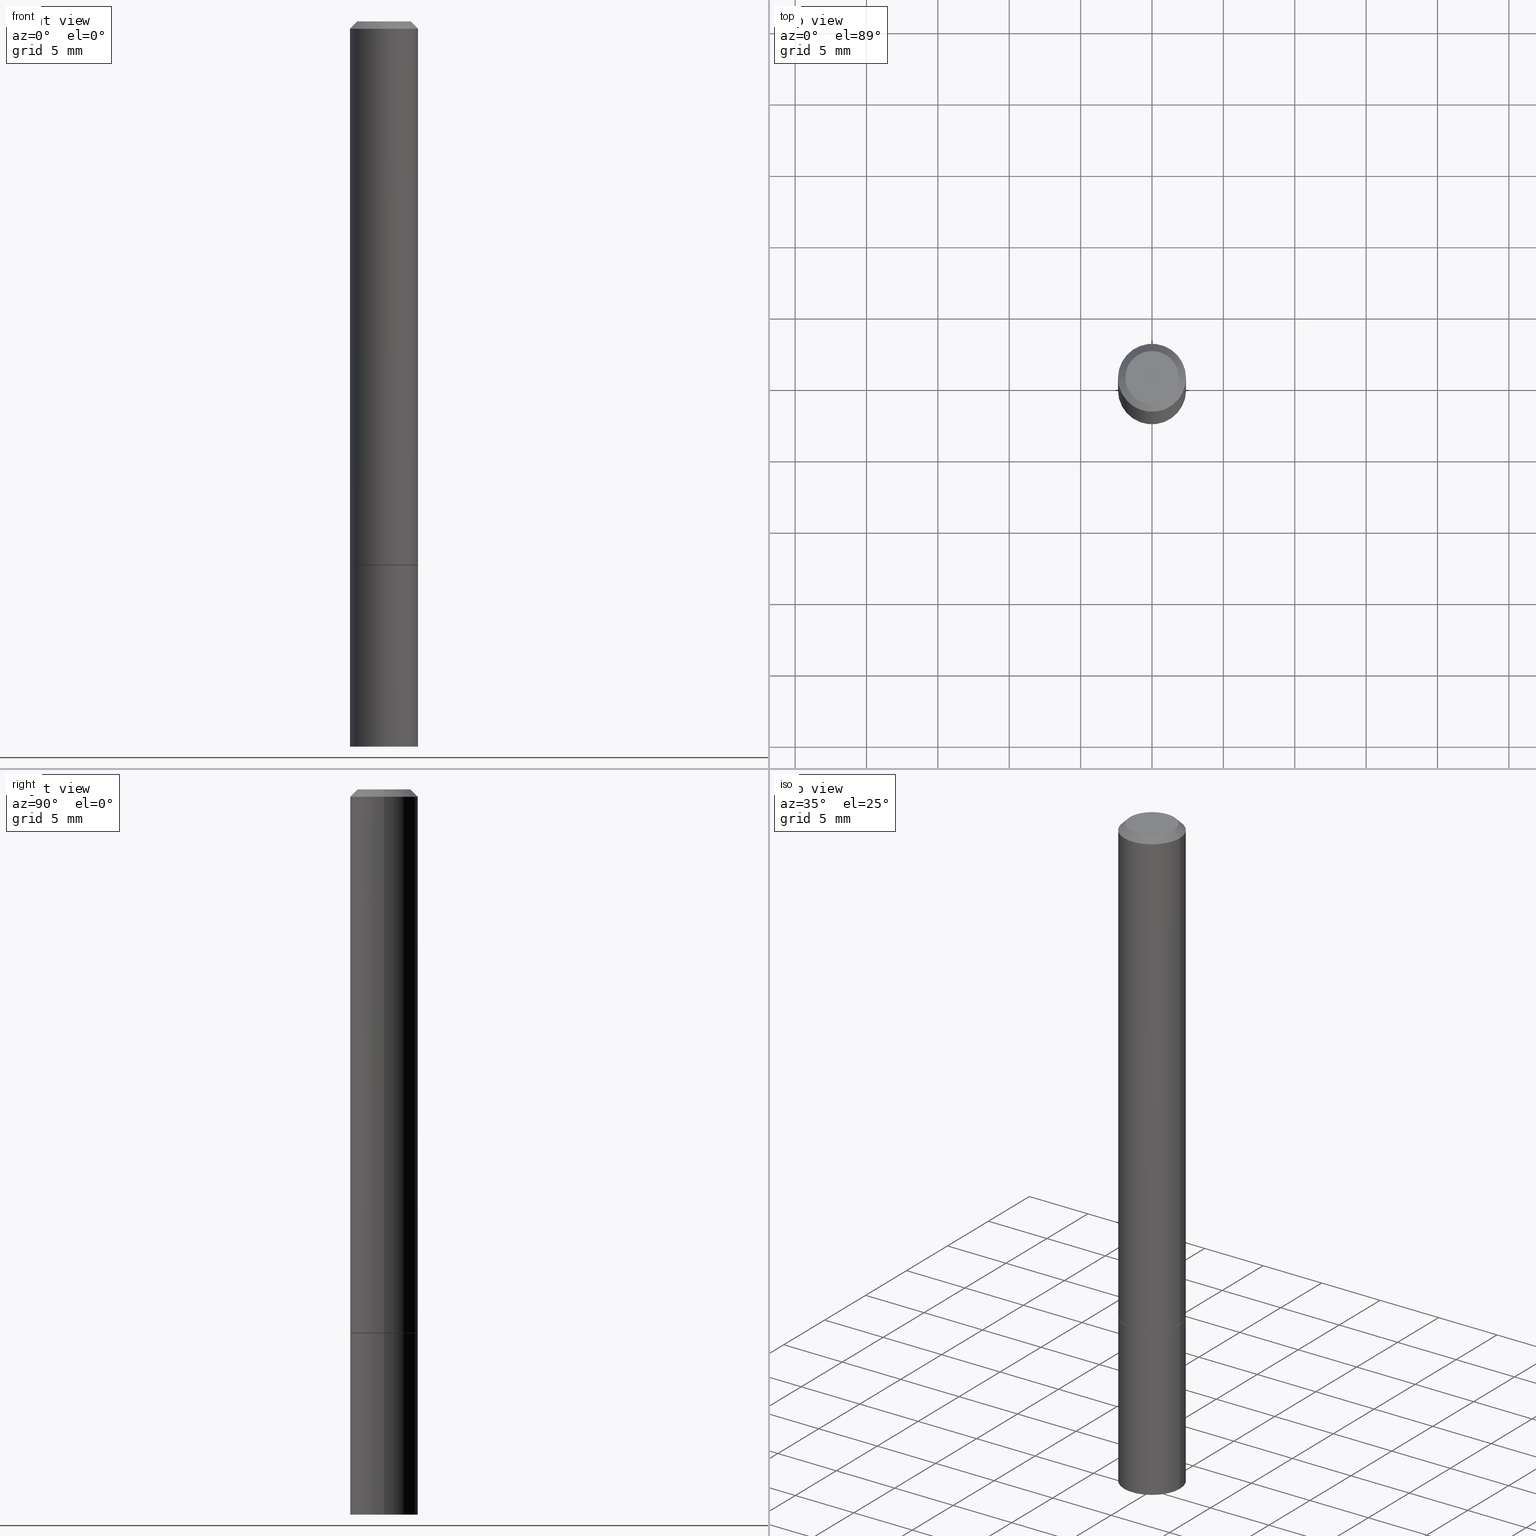
[diagram: canonical four-view strip — front | top / right | iso, engineering-drawing reading convention]
A machine part, canonical four-view strip (front | top / right | iso — engineering-drawing reading convention). The complete STEP part file that produces these views, byte-faithful:
ISO-10303-21;
HEADER;
FILE_DESCRIPTION (( 'STEP AP203' ),
    '1' );
FILE_NAME ('37182.STEP',
    '2024-02-27T20:48:31',
    ( '' ),
    ( '' ),
    'SwSTEP 2.0',
    'SolidWorks 2023',
    '' );
FILE_SCHEMA (( 'CONFIG_CONTROL_DESIGN' ));
ENDSEC;

DATA;
#1 = AXIS2_PLACEMENT_3D ( 'NONE', #320, #59, #167 ) ;
#2 = CC_DESIGN_PERSON_AND_ORGANIZATION_ASSIGNMENT ( #63, #122, ( #170 ) ) ;
#3 = DIRECTION ( 'NONE',  ( 1.000000000000000000, -6.982962677686261977E-15, 0.000000000000000000 ) ) ;
#4 = LINE ( 'NONE', #156, #85 ) ;
#5 = LOCAL_TIME ( 15, 48, 31.00000000000000000, #106 ) ;
#6 = AXIS2_PLACEMENT_3D ( 'NONE', #186, #86, #3 ) ;
#7 = EDGE_CURVE ( 'NONE', #115, #194, #32, .T. ) ;
#8 = VERTEX_POINT ( 'NONE', #355 ) ;
#9 = PRODUCT_DEFINITION_SHAPE ( 'NONE', 'NONE',  #250 ) ;
#10 = DATE_AND_TIME ( #143, #153 ) ;
#11 = ORIENTED_EDGE ( 'NONE', *, *, #162, .F. ) ;
#12 = DIRECTION ( 'NONE',  ( 1.000000000000000000, -6.982962677686266711E-15, 4.876176775795935793E-29 ) ) ;
#13 = ORIENTED_EDGE ( 'NONE', *, *, #291, .T. ) ;
#14 = APPROVAL_ROLE ( '' ) ;
#15 = EDGE_LOOP ( 'NONE', ( #273, #196, #203, #252 ) ) ;
#16 = APPROVAL_DATE_TIME ( #269, #271 ) ;
#17 = DESIGN_CONTEXT ( 'detailed design', #248, 'design' ) ;
#18 = ADVANCED_FACE ( 'NONE', ( #98 ), #178, .F. ) ;
#19 = PERSON_AND_ORGANIZATION_ROLE ( 'classification_officer' ) ;
#20 = CYLINDRICAL_SURFACE ( 'NONE', #227, 0.09374999999999991673 ) ;
#21 = DIRECTION ( 'NONE',  ( 2.438088387897960049E-29, -3.491481338843145188E-15, -1.000000000000000000 ) ) ;
#22 = ORIENTED_EDGE ( 'NONE', *, *, #291, .F. ) ;
#23 = AXIS2_PLACEMENT_3D ( 'NONE', #123, #201, #301 ) ;
#24 = CALENDAR_DATE ( 2024, 27, 2 ) ;
#25 = CIRCLE ( 'NONE', #326, 0.09375000000000001388 ) ;
#26 = PLANE ( 'NONE',  #152 ) ;
#27 = ORIENTED_EDGE ( 'NONE', *, *, #64, .F. ) ;
#28 = LOCAL_TIME ( 15, 48, 31.00000000000000000, #330 ) ;
#29 = MANIFOLD_SOLID_BREP ( 'Body-Move/Copy2[2]', #154 ) ;
#30 = DIRECTION ( 'NONE',  ( 1.000000000000000000, -6.982962677686266711E-15, 4.876176775795935793E-29 ) ) ;
#31 = DIRECTION ( 'NONE',  ( 1.000000000000000000, -6.982962677686265922E-15, 4.876176775795935793E-29 ) ) ;
#32 = CIRCLE ( 'NONE', #84, 0.09375000000000001388 ) ;
#33 = PLANE ( 'NONE',  #311 ) ;
#34 = ORIENTED_EDGE ( 'NONE', *, *, #359, .T. ) ;
#35 = FACE_OUTER_BOUND ( 'NONE', #217, .T. ) ;
#36 = EDGE_LOOP ( 'NONE', ( #136, #37, #266, #11 ) ) ;
#37 = ORIENTED_EDGE ( 'NONE', *, *, #144, .T. ) ;
#38 = CONICAL_SURFACE ( 'NONE', #258, 0.09374999999999981959, 0.7853981633974472798 ) ;
#39 = ADVANCED_FACE ( 'NONE', ( #42 ), #197, .T. ) ;
#40 = CALENDAR_DATE ( 2024, 27, 2 ) ;
#41 = DIRECTION ( 'NONE',  ( -1.000000000000000000, 6.982962677686265922E-15, -4.876176775795935793E-29 ) ) ;
#42 = FACE_OUTER_BOUND ( 'NONE', #36, .T. ) ;
#43 = CARTESIAN_POINT ( 'NONE',  ( 3.665757740471518171E-29, -5.233730526925873592E-15, -1.498999999999999444 ) ) ;
#44 = ORIENTED_EDGE ( 'NONE', *, *, #215, .F. ) ;
#45 = CARTESIAN_POINT ( 'NONE',  ( -0.09375000000000001388, -5.443958528200409958E-15, -2.000000000000000000 ) ) ;
#46 = EDGE_LOOP ( 'NONE', ( #340, #90, #310, #237 ) ) ;
#47 = CONICAL_SURFACE ( 'NONE', #315, 0.09274999999999999911, 0.7853981633972775267 ) ;
#48 = APPROVAL_PERSON_ORGANIZATION ( #229, #271, #212 ) ;
#49 = AXIS2_PLACEMENT_3D ( 'NONE', #263, #191, #114 ) ;
#50 = CARTESIAN_POINT ( 'NONE',  ( 0.09274999999999999911, -5.884891796620118089E-15, -1.499999999999999778 ) ) ;
#51 = FACE_OUTER_BOUND ( 'NONE', #338, .T. ) ;
#52 = CARTESIAN_POINT ( 'NONE',  ( 0.000000000000000000, 0.000000000000000000, 0.000000000000000000 ) ) ;
#53 = DIRECTION ( 'NONE',  ( 2.445468806185136597E-29, -3.491481338843145583E-15, -1.000000000000000000 ) ) ;
#54 = EDGE_CURVE ( 'NONE', #83, #137, #147, .T. ) ;
#55 = CARTESIAN_POINT ( 'NONE',  ( 0.09374999999999991673, -6.546527510330869125E-16, 4.571415727308685602E-30 ) ) ;
#56 = PERSON ( 'UNSPECIFIED', 'UNSPECIFIED', 'UNSPECIFIED', ('UNSPECIFIED'), ('UNSPECIFIED'), ('UNSPECIFIED') ) ;
#57 = CIRCLE ( 'NONE', #267, 0.07374999999999982958 ) ;
#58 = CARTESIAN_POINT ( 'NONE',  ( -0.09375000000000001388, -1.985646262076272154E-15, -1.498999999999999444 ) ) ;
#59 = DIRECTION ( 'NONE',  ( -2.445468806185136597E-29, 3.491481338843145583E-15, 1.000000000000000000 ) ) ;
#60 = AXIS2_PLACEMENT_3D ( 'NONE', #348, #234, #97 ) ;
#61 = CIRCLE ( 'NONE', #222, 0.09375000000000001388 ) ;
#62 = DIRECTION ( 'NONE',  ( 1.000000000000000000, -6.982962677686266711E-15, 0.000000000000000000 ) ) ;
#63 = PERSON_AND_ORGANIZATION ( #56, #165 ) ;
#64 = EDGE_CURVE ( 'NONE', #115, #249, #70, .T. ) ;
#65 = COORDINATED_UNIVERSAL_TIME_OFFSET ( 5, 0, .BEHIND. ) ;
#66 = DIRECTION ( 'NONE',  ( 2.438088387897960049E-29, -3.491481338843145188E-15, -1.000000000000000000 ) ) ;
#67 = EDGE_LOOP ( 'NONE', ( #34, #329 ) ) ;
#68 = CARTESIAN_POINT ( 'NONE',  ( 5.149934974793609077E-16, 0.07374999999999982958, -2.574967487396813906E-16 ) ) ;
#69 = ADVANCED_FACE ( 'NONE', ( #108 ), #47, .T. ) ;
#70 = LINE ( 'NONE', #358, #206 ) ;
#71 = DIRECTION ( 'NONE',  ( -2.445468806185136877E-29, 3.491481338843145188E-15, 1.000000000000000000 ) ) ;
#72 = CALENDAR_DATE ( 2024, 27, 2 ) ;
#73 = CC_DESIGN_PERSON_AND_ORGANIZATION_ASSIGNMENT ( #121, #239, ( #250 ) ) ;
#74 = DIRECTION ( 'NONE',  ( 2.438088387897960049E-29, -3.491481338843145188E-15, -1.000000000000000000 ) ) ;
#75 = DIRECTION ( 'NONE',  ( 1.000000000000000000, -6.982962677686261189E-15, 0.000000000000000000 ) ) ;
#76 = CIRCLE ( 'NONE', #188, 0.09375000000000001388 ) ;
#77 = VECTOR ( 'NONE', #78, 39.37007874015748143 ) ;
#78 = DIRECTION ( 'NONE',  ( -2.445468806185136877E-29, 3.491481338843145188E-15, 1.000000000000000000 ) ) ;
#79 = PERSON_AND_ORGANIZATION ( #56, #165 ) ;
#80 = ORIENTED_EDGE ( 'NONE', *, *, #144, .F. ) ;
#81 = DIRECTION ( 'NONE',  ( -1.000000000000000000, 6.982962677686268288E-15, 0.000000000000000000 ) ) ;
#82 = EDGE_CURVE ( 'NONE', #194, #115, #353, .T. ) ;
#83 = VERTEX_POINT ( 'NONE', #277 ) ;
#84 = AXIS2_PLACEMENT_3D ( 'NONE', #230, #365, #307 ) ;
#85 = VECTOR ( 'NONE', #218, 39.37007874015748143 ) ;
#86 = DIRECTION ( 'NONE',  ( -2.445468806185136597E-29, 3.491481338843145583E-15, 1.000000000000000000 ) ) ;
#87 = CARTESIAN_POINT ( 'NONE',  ( 0.09375000000000001388, -7.637615428719378669E-15, -2.000000000000000000 ) ) ;
#88 = FACE_OUTER_BOUND ( 'NONE', #293, .T. ) ;
#89 =( NAMED_UNIT ( * ) SI_UNIT ( $, .STERADIAN. ) SOLID_ANGLE_UNIT ( ) );
#90 = ORIENTED_EDGE ( 'NONE', *, *, #174, .T. ) ;
#91 = ORIENTED_EDGE ( 'NONE', *, *, #245, .F. ) ;
#92 = UNCERTAINTY_MEASURE_WITH_UNIT (LENGTH_MEASURE( 1.000000000000000082E-05 ), #168, 'distance_accuracy_value', 'NONE');
#93 = CC_DESIGN_APPROVAL ( #271, ( #250 ) ) ;
#94 = DIRECTION ( 'NONE',  ( -2.445468806185136597E-29, 3.491481338843145583E-15, 1.000000000000000000 ) ) ;
#95 = ADVANCED_FACE ( 'NONE', ( #339 ), #334, .F. ) ;
#96 = CARTESIAN_POINT ( 'NONE',  ( -0.07374999999999982958, 5.499083108677921624E-16, -3.723527850031185562E-30 ) ) ;
#97 = DIRECTION ( 'NONE',  ( 1.000000000000000000, -6.982962677686261189E-15, 0.000000000000000000 ) ) ;
#98 = FACE_OUTER_BOUND ( 'NONE', #132, .T. ) ;
#99 = CARTESIAN_POINT ( 'NONE',  ( 3.668203209277704335E-29, -5.237222008264717388E-15, -1.499999999999999778 ) ) ;
#100 = SECURITY_CLASSIFICATION ( '', '', #357 ) ;
#101 = CARTESIAN_POINT ( 'NONE',  ( 4.890937612370281041E-31, -6.982962677686302702E-17, -0.02000000000000003511 ) ) ;
#102 = EDGE_LOOP ( 'NONE', ( #233, #80 ) ) ;
#103 = AXIS2_PLACEMENT_3D ( 'NONE', #107, #150, #309 ) ;
#104 = PERSON_AND_ORGANIZATION_ROLE ( 'design_owner' ) ;
#105 = PERSON_AND_ORGANIZATION ( #56, #165 ) ;
#106 = COORDINATED_UNIVERSAL_TIME_OFFSET ( 5, 0, .BEHIND. ) ;
#107 = CARTESIAN_POINT ( 'NONE',  ( 4.890937612370273194E-29, -6.982962677686291165E-15, -2.000000000000000000 ) ) ;
#108 = FACE_OUTER_BOUND ( 'NONE', #15, .T. ) ;
#109 = CARTESIAN_POINT ( 'NONE',  ( -0.09274999999999999911, -4.578193620847224472E-15, -1.499999999999999778 ) ) ;
#110 = EDGE_CURVE ( 'NONE', #360, #141, #243, .T. ) ;
#111 = CARTESIAN_POINT ( 'NONE',  ( 0.09375000000000001388, -5.891874759297804892E-15, -1.499999999999999778 ) ) ;
#112 = FACE_OUTER_BOUND ( 'NONE', #46, .T. ) ;
#113 = VECTOR ( 'NONE', #341, 39.37007874015748143 ) ;
#114 = DIRECTION ( 'NONE',  ( -1.000000000000000000, 6.982962677686268288E-15, 0.000000000000000000 ) ) ;
#115 = VERTEX_POINT ( 'NONE', #45 ) ;
#116 = ORIENTED_EDGE ( 'NONE', *, *, #255, .T. ) ;
#117 = CONICAL_SURFACE ( 'NONE', #49, 0.09374999999999981959, 0.7853981633974472798 ) ;
#118 = DIRECTION ( 'NONE',  ( 1.000000000000000000, -6.982962677686261977E-15, 0.000000000000000000 ) ) ;
#119 = CARTESIAN_POINT ( 'NONE',  ( 0.000000000000000000, 0.000000000000000000, 0.000000000000000000 ) ) ;
#120 = CC_DESIGN_DATE_AND_TIME_ASSIGNMENT ( #302, #127, ( #250 ) ) ;
#121 = PERSON_AND_ORGANIZATION ( #56, #165 ) ;
#122 = PERSON_AND_ORGANIZATION_ROLE ( 'design_supplier' ) ;
#123 = CARTESIAN_POINT ( 'NONE',  ( 3.668203209277704335E-29, -5.237222008264717388E-15, -1.499999999999999778 ) ) ;
#124 = COORDINATED_UNIVERSAL_TIME_OFFSET ( 5, 0, .BEHIND. ) ;
#125 = DIRECTION ( 'NONE',  ( -1.000000000000000000, 6.982962677686265922E-15, -4.876176775795935793E-29 ) ) ;
#126 = ADVANCED_FACE ( 'NONE', ( #279 ), #26, .T. ) ;
#127 = DATE_TIME_ROLE ( 'creation_date' ) ;
#128 = CARTESIAN_POINT ( 'NONE',  ( 6.546527510331364135E-16, 0.09374999999999301947, -2.000000000000000444 ) ) ;
#129 = ORIENTED_EDGE ( 'NONE', *, *, #149, .F. ) ;
#130 =( GEOMETRIC_REPRESENTATION_CONTEXT ( 3 ) GLOBAL_UNCERTAINTY_ASSIGNED_CONTEXT ( ( #92 ) ) GLOBAL_UNIT_ASSIGNED_CONTEXT ( ( #168, #349, #89 ) ) REPRESENTATION_CONTEXT ( 'NONE', 'WORKASPACE' ) );
#131 = CC_DESIGN_PERSON_AND_ORGANIZATION_ASSIGNMENT ( #362, #104, ( #303 ) ) ;
#132 = EDGE_LOOP ( 'NONE', ( #305, #13 ) ) ;
#133 = FACE_OUTER_BOUND ( 'NONE', #324, .T. ) ;
#134 = LOCAL_TIME ( 15, 48, 31.00000000000000000, #65 ) ;
#135 = CIRCLE ( 'NONE', #60, 0.09375000000000001388 ) ;
#136 = ORIENTED_EDGE ( 'NONE', *, *, #314, .F. ) ;
#137 = VERTEX_POINT ( 'NONE', #313 ) ;
#138 = VECTOR ( 'NONE', #182, 39.37007874015748143 ) ;
#139 = LENGTH_MEASURE_WITH_UNIT ( LENGTH_MEASURE( 0.02539999999999999897 ), #202 );
#140 = ORIENTED_EDGE ( 'NONE', *, *, #82, .F. ) ;
#141 = VERTEX_POINT ( 'NONE', #265 ) ;
#142 = APPLICATION_CONTEXT ( 'configuration controlled 3d designs of mechanical parts and assemblies' ) ;
#143 = CALENDAR_DATE ( 2024, 27, 2 ) ;
#144 = EDGE_CURVE ( 'NONE', #8, #83, #228, .T. ) ;
#145 = VERTEX_POINT ( 'NONE', #251 ) ;
#146 = LOCAL_TIME ( 15, 48, 31.00000000000000000, #278 ) ;
#147 = LINE ( 'NONE', #50, #363 ) ;
#148 = ORIENTED_EDGE ( 'NONE', *, *, #171, .F. ) ;
#149 = EDGE_CURVE ( 'NONE', #137, #179, #257, .T. ) ;
#150 = DIRECTION ( 'NONE',  ( -2.445468806185136597E-29, 3.491481338843145583E-15, 1.000000000000000000 ) ) ;
#151 = ORIENTED_EDGE ( 'NONE', *, *, #316, .T. ) ;
#152 = AXIS2_PLACEMENT_3D ( 'NONE', #128, #74, #183 ) ;
#153 = LOCAL_TIME ( 15, 48, 31.00000000000000000, #124 ) ;
#154 = CLOSED_SHELL ( 'NONE', ( #69, #321, #180, #166, #285, #39, #189, #95 ) ) ;
#155 = DIRECTION ( 'NONE',  ( 1.000000000000000000, 0.000000000000000000, 0.000000000000000000 ) ) ;
#156 = CARTESIAN_POINT ( 'NONE',  ( 0.09374999999999981959, -7.130013140679428044E-16, -0.02000000000000003511 ) ) ;
#157 = CARTESIAN_POINT ( 'NONE',  ( -0.09375000000000001388, -5.443958528200409958E-15, -1.499999999999999778 ) ) ;
#158 = DIRECTION ( 'NONE',  ( 1.000000000000000000, -6.982962677686266711E-15, 4.876176775795935793E-29 ) ) ;
#159 = CYLINDRICAL_SURFACE ( 'NONE', #172, 0.09375000000000001388 ) ;
#160 = PRODUCT_RELATED_PRODUCT_CATEGORY ( 'detail', '', ( #303 ) ) ;
#161 = CARTESIAN_POINT ( 'NONE',  ( 3.668203209277704335E-29, -5.237222008264717388E-15, -1.499999999999999778 ) ) ;
#162 = EDGE_CURVE ( 'NONE', #209, #137, #76, .T. ) ;
#163 = CARTESIAN_POINT ( 'NONE',  ( 0.000000000000000000, 0.000000000000000000, 0.000000000000000000 ) ) ;
#164 = VECTOR ( 'NONE', #190, 39.37007874015748143 ) ;
#165 = ORGANIZATION ( 'UNSPECIFIED', 'UNSPECIFIED', '' ) ;
#166 = ADVANCED_FACE ( 'NONE', ( #133 ), #38, .T. ) ;
#167 = DIRECTION ( 'NONE',  ( 1.000000000000000000, -6.982962677686265922E-15, 4.876176775795935793E-29 ) ) ;
#168 =( CONVERSION_BASED_UNIT ( 'INCH', #139 ) LENGTH_UNIT ( ) NAMED_UNIT ( #262 ) );
#169 = APPROVAL ( #331, 'UNSPECIFIED' ) ;
#170 = PRODUCT_DEFINITION_FORMATION_WITH_SPECIFIED_SOURCE ( 'ANY', '', #303, .NOT_KNOWN. ) ;
#171 = EDGE_CURVE ( 'NONE', #236, #249, #61, .T. ) ;
#172 = AXIS2_PLACEMENT_3D ( 'NONE', #280, #366, #284 ) ;
#173 = ORIENTED_EDGE ( 'NONE', *, *, #82, .T. ) ;
#174 = EDGE_CURVE ( 'NONE', #145, #179, #4, .T. ) ;
#175 = ORIENTED_EDGE ( 'NONE', *, *, #174, .F. ) ;
#176 = DIRECTION ( 'NONE',  ( 1.000000000000000000, -6.982962677686266711E-15, 4.876176775795935793E-29 ) ) ;
#177 = CALENDAR_DATE ( 2024, 27, 2 ) ;
#178 = PLANE ( 'NONE',  #244 ) ;
#179 = VERTEX_POINT ( 'NONE', #254 ) ;
#180 = ADVANCED_FACE ( 'NONE', ( #112 ), #117, .T. ) ;
#181 = CARTESIAN_POINT ( 'NONE',  ( 0.09375000000000001388, -6.546527510330875041E-16, 4.571415727308690506E-30 ) ) ;
#182 = DIRECTION ( 'NONE',  ( -0.7071067811865467956, 2.468850131082249172E-15, -0.7071067811865482389 ) ) ;
#183 = DIRECTION ( 'NONE',  ( -1.000000000000000000, 6.982962677686265922E-15, -4.876176775795935793E-29 ) ) ;
#184 = CIRCLE ( 'NONE', #297, 0.09374999999999981959 ) ;
#185 = DIRECTION ( 'NONE',  ( -2.445468806185136597E-29, 3.491481338843145583E-15, 1.000000000000000000 ) ) ;
#186 = CARTESIAN_POINT ( 'NONE',  ( 3.668203209277704335E-29, -5.237222008264717388E-15, -1.499999999999999778 ) ) ;
#187 = APPROVAL_PERSON_ORGANIZATION ( #200, #169, #247 ) ;
#188 = AXIS2_PLACEMENT_3D ( 'NONE', #289, #253, #318 ) ;
#189 = ADVANCED_FACE ( 'NONE', ( #264 ), #33, .F. ) ;
#190 = DIRECTION ( 'NONE',  ( -2.445468806185136877E-29, 3.491481338843145188E-15, 1.000000000000000000 ) ) ;
#191 = DIRECTION ( 'NONE',  ( 2.445468806185136597E-29, -3.491481338843145583E-15, -1.000000000000000000 ) ) ;
#192 = CYLINDRICAL_SURFACE ( 'NONE', #1, 0.09375000000000001388 ) ;
#193 = CARTESIAN_POINT ( 'NONE',  ( -0.09374999999999991673, 6.661338147750933326E-16, -4.611501647113969791E-30 ) ) ;
#194 = VERTEX_POINT ( 'NONE', #87 ) ;
#195 = CARTESIAN_POINT ( 'NONE',  ( 0.000000000000000000, 0.000000000000000000, 0.000000000000000000 ) ) ;
#196 = ORIENTED_EDGE ( 'NONE', *, *, #314, .T. ) ;
#197 = CONICAL_SURFACE ( 'NONE', #23, 0.09274999999999999911, 0.7853981633972775267 ) ;
#198 = CIRCLE ( 'NONE', #345, 0.09374999999999981959 ) ;
#199 = DIRECTION ( 'NONE',  ( -2.445468806185136597E-29, 3.491481338843145583E-15, 1.000000000000000000 ) ) ;
#200 = PERSON_AND_ORGANIZATION ( #56, #165 ) ;
#201 = DIRECTION ( 'NONE',  ( -2.445468806185136597E-29, 3.491481338843145583E-15, 1.000000000000000000 ) ) ;
#202 =( LENGTH_UNIT ( ) NAMED_UNIT ( * ) SI_UNIT ( $, .METRE. ) );
#203 = ORIENTED_EDGE ( 'NONE', *, *, #255, .F. ) ;
#204 = PERSON_AND_ORGANIZATION_ROLE ( 'creator' ) ;
#205 = AXIS2_PLACEMENT_3D ( 'NONE', #163, #290, #30 ) ;
#206 = VECTOR ( 'NONE', #364, 39.37007874015748143 ) ;
#207 = CC_DESIGN_DATE_AND_TIME_ASSIGNMENT ( #10, #350, ( #100 ) ) ;
#208 = APPLICATION_PROTOCOL_DEFINITION ( 'international standard', 'config_control_design', 1994, #142 ) ;
#209 = VERTEX_POINT ( 'NONE', #58 ) ;
#210 = CARTESIAN_POINT ( 'NONE',  ( -0.09374999999999981959, 5.848231242562233185E-16, -0.02000000000000003511 ) ) ;
#211 = ORIENTED_EDGE ( 'NONE', *, *, #337, .F. ) ;
#212 = APPROVAL_ROLE ( '' ) ;
#213 = DIRECTION ( 'NONE',  ( -2.445468806185136597E-29, 3.491481338843145583E-15, 1.000000000000000000 ) ) ;
#214 = APPROVAL_DATE_TIME ( #272, #169 ) ;
#215 = EDGE_CURVE ( 'NONE', #141, #179, #184, .T. ) ;
#216 = DIRECTION ( 'NONE',  ( -2.445468806185136597E-29, 3.491481338843145583E-15, 1.000000000000000000 ) ) ;
#217 = EDGE_LOOP ( 'NONE', ( #116, #298, #91, #129 ) ) ;
#218 = DIRECTION ( 'NONE',  ( 0.7071067811865467956, -7.319954787623254468E-15, -0.7071067811865482389 ) ) ;
#219 = LINE ( 'NONE', #109, #113 ) ;
#220 = ORIENTED_EDGE ( 'NONE', *, *, #162, .T. ) ;
#221 = ADVANCED_FACE ( 'NONE', ( #306 ), #159, .T. ) ;
#222 = AXIS2_PLACEMENT_3D ( 'NONE', #161, #286, #342 ) ;
#223 = CC_DESIGN_APPROVAL ( #169, ( #170 ) ) ;
#224 = CARTESIAN_POINT ( 'NONE',  ( 3.668203209277704335E-29, -5.237222008264717388E-15, -1.499999999999999778 ) ) ;
#225 = CLOSED_SHELL ( 'NONE', ( #322, #126, #18, #221 ) ) ;
#226 = EDGE_LOOP ( 'NONE', ( #140, #238 ) ) ;
#227 = AXIS2_PLACEMENT_3D ( 'NONE', #195, #300, #12 ) ;
#228 = CIRCLE ( 'NONE', #6, 0.09274999999999999911 ) ;
#229 = PERSON_AND_ORGANIZATION ( #56, #165 ) ;
#230 = CARTESIAN_POINT ( 'NONE',  ( 4.890937612370273194E-29, -6.982962677686291165E-15, -2.000000000000000000 ) ) ;
#231 = CARTESIAN_POINT ( 'NONE',  ( 0.000000000000000000, 0.000000000000000000, 0.000000000000000000 ) ) ;
#232 = DIRECTION ( 'NONE',  ( 0.000000000000000000, 0.000000000000000000, 1.000000000000000000 ) ) ;
#233 = ORIENTED_EDGE ( 'NONE', *, *, #346, .F. ) ;
#234 = DIRECTION ( 'NONE',  ( -2.445468806185136597E-29, 3.491481338843145583E-15, 1.000000000000000000 ) ) ;
#235 = DATE_AND_TIME ( #72, #5 ) ;
#236 = VERTEX_POINT ( 'NONE', #111 ) ;
#237 = ORIENTED_EDGE ( 'NONE', *, *, #110, .F. ) ;
#238 = ORIENTED_EDGE ( 'NONE', *, *, #7, .F. ) ;
#239 = PERSON_AND_ORGANIZATION_ROLE ( 'creator' ) ;
#240 = SHAPE_DEFINITION_REPRESENTATION ( #9, #288 ) ;
#241 = DIRECTION ( 'NONE',  ( 0.7071067811864267805, -2.468850131080992517E-15, 0.7071067811866682540 ) ) ;
#242 = LINE ( 'NONE', #181, #77 ) ;
#243 = LINE ( 'NONE', #210, #138 ) ;
#244 = AXIS2_PLACEMENT_3D ( 'NONE', #332, #66, #41 ) ;
#245 = EDGE_CURVE ( 'NONE', #179, #141, #198, .T. ) ;
#246 = APPROVAL_STATUS ( 'not_yet_approved' ) ;
#247 = APPROVAL_ROLE ( '' ) ;
#248 = APPLICATION_CONTEXT ( 'configuration controlled 3d designs of mechanical parts and assemblies' ) ;
#249 = VERTEX_POINT ( 'NONE', #157 ) ;
#250 = PRODUCT_DEFINITION ( 'UNKNOWN', '', #170, #17 ) ;
#251 = CARTESIAN_POINT ( 'NONE',  ( 0.07374999999999982958, -6.094815207017960212E-16, 3.931526600461596647E-30 ) ) ;
#252 = ORIENTED_EDGE ( 'NONE', *, *, #54, .F. ) ;
#253 = DIRECTION ( 'NONE',  ( -2.445468806185136597E-29, 3.491481338843145583E-15, 1.000000000000000000 ) ) ;
#254 = CARTESIAN_POINT ( 'NONE',  ( 0.09374999999999981959, -7.130013140679428044E-16, -0.02000000000000003511 ) ) ;
#255 = EDGE_CURVE ( 'NONE', #137, #209, #25, .T. ) ;
#256 = APPROVAL ( #268, 'UNSPECIFIED' ) ;
#257 = LINE ( 'NONE', #55, #164 ) ;
#258 = AXIS2_PLACEMENT_3D ( 'NONE', #283, #53, #81 ) ;
#259 = VECTOR ( 'NONE', #71, 39.37007874015748143 ) ;
#260 = ORIENTED_EDGE ( 'NONE', *, *, #215, .T. ) ;
#261 = ORIENTED_EDGE ( 'NONE', *, *, #149, .T. ) ;
#262 = DIMENSIONAL_EXPONENTS ( 1.000000000000000000, 0.000000000000000000, 0.000000000000000000, 0.000000000000000000, 0.000000000000000000, 0.000000000000000000, 0.000000000000000000 ) ;
#263 = CARTESIAN_POINT ( 'NONE',  ( 4.890937612370281041E-31, -6.982962677686302702E-17, -0.02000000000000003511 ) ) ;
#264 = FACE_OUTER_BOUND ( 'NONE', #102, .T. ) ;
#265 = CARTESIAN_POINT ( 'NONE',  ( -0.09374999999999981959, 5.848231242562233185E-16, -0.02000000000000003511 ) ) ;
#266 = ORIENTED_EDGE ( 'NONE', *, *, #54, .T. ) ;
#267 = AXIS2_PLACEMENT_3D ( 'NONE', #52, #213, #158 ) ;
#268 = APPROVAL_STATUS ( 'not_yet_approved' ) ;
#269 = DATE_AND_TIME ( #177, #28 ) ;
#270 = ORIENTED_EDGE ( 'NONE', *, *, #359, .F. ) ;
#271 = APPROVAL ( #246, 'UNSPECIFIED' ) ;
#272 = DATE_AND_TIME ( #40, #134 ) ;
#273 = ORIENTED_EDGE ( 'NONE', *, *, #346, .T. ) ;
#274 = MECHANICAL_CONTEXT ( 'NONE', #142, 'mechanical' ) ;
#275 = PERSON_AND_ORGANIZATION ( #56, #165 ) ;
#276 = MANIFOLD_SOLID_BREP ( 'Body-Move/Copy2[1]', #225 ) ;
#277 = CARTESIAN_POINT ( 'NONE',  ( 0.09274999999999999911, -5.884891796620118089E-15, -1.499999999999999778 ) ) ;
#278 = COORDINATED_UNIVERSAL_TIME_OFFSET ( 5, 0, .BEHIND. ) ;
#279 = FACE_OUTER_BOUND ( 'NONE', #226, .T. ) ;
#280 = CARTESIAN_POINT ( 'NONE',  ( 0.000000000000000000, 0.000000000000000000, 0.000000000000000000 ) ) ;
#281 = ORIENTED_EDGE ( 'NONE', *, *, #110, .T. ) ;
#282 = APPROVAL_DATE_TIME ( #235, #256 ) ;
#283 = CARTESIAN_POINT ( 'NONE',  ( 4.890937612370281041E-31, -6.982962677686302702E-17, -0.02000000000000003511 ) ) ;
#284 = DIRECTION ( 'NONE',  ( 1.000000000000000000, -6.982962677686265922E-15, 4.876176775795935793E-29 ) ) ;
#285 = ADVANCED_FACE ( 'NONE', ( #51 ), #20, .T. ) ;
#286 = DIRECTION ( 'NONE',  ( -2.445468806185136597E-29, 3.491481338843145583E-15, 1.000000000000000000 ) ) ;
#287 = CC_DESIGN_SECURITY_CLASSIFICATION ( #100, ( #170 ) ) ;
#288 = ADVANCED_BREP_SHAPE_REPRESENTATION ( '37182', ( #276, #29, #361 ), #130 ) ;
#289 = CARTESIAN_POINT ( 'NONE',  ( 3.665757740471518171E-29, -5.233730526925873592E-15, -1.498999999999999444 ) ) ;
#290 = DIRECTION ( 'NONE',  ( -2.445468806185136597E-29, 3.491481338843145583E-15, 1.000000000000000000 ) ) ;
#291 = EDGE_CURVE ( 'NONE', #249, #236, #135, .T. ) ;
#292 = CC_DESIGN_PERSON_AND_ORGANIZATION_ASSIGNMENT ( #275, #19, ( #100 ) ) ;
#293 = EDGE_LOOP ( 'NONE', ( #173, #356, #148, #304 ) ) ;
#294 = LINE ( 'NONE', #193, #259 ) ;
#295 = EDGE_CURVE ( 'NONE', #145, #360, #57, .T. ) ;
#296 = CYLINDRICAL_SURFACE ( 'NONE', #205, 0.09374999999999991673 ) ;
#297 = AXIS2_PLACEMENT_3D ( 'NONE', #101, #94, #62 ) ;
#298 = ORIENTED_EDGE ( 'NONE', *, *, #337, .T. ) ;
#299 = DIRECTION ( 'NONE',  ( 1.000000000000000000, -6.982962677686261977E-15, 0.000000000000000000 ) ) ;
#300 = DIRECTION ( 'NONE',  ( -2.445468806185136597E-29, 3.491481338843145583E-15, 1.000000000000000000 ) ) ;
#301 = DIRECTION ( 'NONE',  ( 1.000000000000000000, -6.982962677686261977E-15, 0.000000000000000000 ) ) ;
#302 = DATE_AND_TIME ( #24, #146 ) ;
#303 = PRODUCT ( '37182', '37182', '', ( #274 ) ) ;
#304 = ORIENTED_EDGE ( 'NONE', *, *, #316, .F. ) ;
#305 = ORIENTED_EDGE ( 'NONE', *, *, #171, .T. ) ;
#306 = FACE_OUTER_BOUND ( 'NONE', #327, .T. ) ;
#307 = DIRECTION ( 'NONE',  ( 1.000000000000000000, -6.982962677686261189E-15, 0.000000000000000000 ) ) ;
#308 = DIRECTION ( 'NONE',  ( 1.000000000000000000, -6.982962677686266711E-15, 0.000000000000000000 ) ) ;
#309 = DIRECTION ( 'NONE',  ( 1.000000000000000000, -6.982962677686261189E-15, 0.000000000000000000 ) ) ;
#310 = ORIENTED_EDGE ( 'NONE', *, *, #245, .T. ) ;
#311 = AXIS2_PLACEMENT_3D ( 'NONE', #224, #317, #31 ) ;
#312 = AXIS2_PLACEMENT_3D ( 'NONE', #231, #354, #176 ) ;
#313 = CARTESIAN_POINT ( 'NONE',  ( 0.09375000000000001388, -5.888383277958961096E-15, -1.498999999999999444 ) ) ;
#314 = EDGE_CURVE ( 'NONE', #8, #209, #219, .T. ) ;
#315 = AXIS2_PLACEMENT_3D ( 'NONE', #99, #216, #118 ) ;
#316 = EDGE_CURVE ( 'NONE', #194, #236, #242, .T. ) ;
#317 = DIRECTION ( 'NONE',  ( -2.438088387897960049E-29, 3.491481338843145188E-15, 1.000000000000000000 ) ) ;
#318 = DIRECTION ( 'NONE',  ( 1.000000000000000000, -6.982962677686261189E-15, 0.000000000000000000 ) ) ;
#319 = CIRCLE ( 'NONE', #325, 0.09274999999999999911 ) ;
#320 = CARTESIAN_POINT ( 'NONE',  ( 0.000000000000000000, 0.000000000000000000, 0.000000000000000000 ) ) ;
#321 = ADVANCED_FACE ( 'NONE', ( #35 ), #296, .T. ) ;
#322 = ADVANCED_FACE ( 'NONE', ( #88 ), #192, .T. ) ;
#323 = AXIS2_PLACEMENT_3D ( 'NONE', #68, #21, #125 ) ;
#324 = EDGE_LOOP ( 'NONE', ( #175, #270, #281, #260 ) ) ;
#325 = AXIS2_PLACEMENT_3D ( 'NONE', #352, #199, #299 ) ;
#326 = AXIS2_PLACEMENT_3D ( 'NONE', #43, #185, #75 ) ;
#327 = EDGE_LOOP ( 'NONE', ( #27, #347, #151, #22 ) ) ;
#328 = CC_DESIGN_PERSON_AND_ORGANIZATION_ASSIGNMENT ( #105, #204, ( #170 ) ) ;
#329 = ORIENTED_EDGE ( 'NONE', *, *, #295, .T. ) ;
#330 = COORDINATED_UNIVERSAL_TIME_OFFSET ( 5, 0, .BEHIND. ) ;
#331 = APPROVAL_STATUS ( 'not_yet_approved' ) ;
#332 = CARTESIAN_POINT ( 'NONE',  ( 6.546527510331241861E-16, 0.09374999999999476807, -1.500000000000000222 ) ) ;
#333 = APPROVAL_PERSON_ORGANIZATION ( #79, #256, #14 ) ;
#334 = PLANE ( 'NONE',  #323 ) ;
#335 = DIRECTION ( 'NONE',  ( -2.445468806185136597E-29, 3.491481338843145583E-15, 1.000000000000000000 ) ) ;
#336 = APPLICATION_PROTOCOL_DEFINITION ( 'international standard', 'config_control_design', 1994, #248 ) ;
#337 = EDGE_CURVE ( 'NONE', #209, #141, #294, .T. ) ;
#338 = EDGE_LOOP ( 'NONE', ( #211, #220, #261, #44 ) ) ;
#339 = FACE_OUTER_BOUND ( 'NONE', #67, .T. ) ;
#340 = ORIENTED_EDGE ( 'NONE', *, *, #295, .F. ) ;
#341 = DIRECTION ( 'NONE',  ( -0.7071067811864267805, 7.493145998869918709E-15, 0.7071067811866682540 ) ) ;
#342 = DIRECTION ( 'NONE',  ( 1.000000000000000000, -6.982962677686261189E-15, 0.000000000000000000 ) ) ;
#343 = CARTESIAN_POINT ( 'NONE',  ( 4.890937612370281041E-31, -6.982962677686302702E-17, -0.02000000000000003511 ) ) ;
#344 = CIRCLE ( 'NONE', #312, 0.07374999999999982958 ) ;
#345 = AXIS2_PLACEMENT_3D ( 'NONE', #343, #335, #308 ) ;
#346 = EDGE_CURVE ( 'NONE', #83, #8, #319, .T. ) ;
#347 = ORIENTED_EDGE ( 'NONE', *, *, #7, .T. ) ;
#348 = CARTESIAN_POINT ( 'NONE',  ( 3.668203209277704335E-29, -5.237222008264717388E-15, -1.499999999999999778 ) ) ;
#349 =( NAMED_UNIT ( * ) PLANE_ANGLE_UNIT ( ) SI_UNIT ( $, .RADIAN. ) );
#350 = DATE_TIME_ROLE ( 'classification_date' ) ;
#351 = CC_DESIGN_APPROVAL ( #256, ( #100 ) ) ;
#352 = CARTESIAN_POINT ( 'NONE',  ( 3.668203209277704335E-29, -5.237222008264717388E-15, -1.499999999999999778 ) ) ;
#353 = CIRCLE ( 'NONE', #103, 0.09375000000000001388 ) ;
#354 = DIRECTION ( 'NONE',  ( -2.445468806185136597E-29, 3.491481338843145583E-15, 1.000000000000000000 ) ) ;
#355 = CARTESIAN_POINT ( 'NONE',  ( -0.09274999999999999911, -4.572895166499002070E-15, -1.499999999999999778 ) ) ;
#356 = ORIENTED_EDGE ( 'NONE', *, *, #64, .T. ) ;
#357 = SECURITY_CLASSIFICATION_LEVEL ( 'unclassified' ) ;
#358 = CARTESIAN_POINT ( 'NONE',  ( -0.09375000000000001388, 6.661338147750940229E-16, -4.611501647113973995E-30 ) ) ;
#359 = EDGE_CURVE ( 'NONE', #360, #145, #344, .T. ) ;
#360 = VERTEX_POINT ( 'NONE', #96 ) ;
#361 = AXIS2_PLACEMENT_3D ( 'NONE', #119, #232, #155 ) ;
#362 = PERSON_AND_ORGANIZATION ( #56, #165 ) ;
#363 = VECTOR ( 'NONE', #241, 39.37007874015748143 ) ;
#364 = DIRECTION ( 'NONE',  ( -2.445468806185136877E-29, 3.491481338843145188E-15, 1.000000000000000000 ) ) ;
#365 = DIRECTION ( 'NONE',  ( -2.445468806185136597E-29, 3.491481338843145583E-15, 1.000000000000000000 ) ) ;
#366 = DIRECTION ( 'NONE',  ( -2.445468806185136597E-29, 3.491481338843145583E-15, 1.000000000000000000 ) ) ;
ENDSEC;
END-ISO-10303-21;
